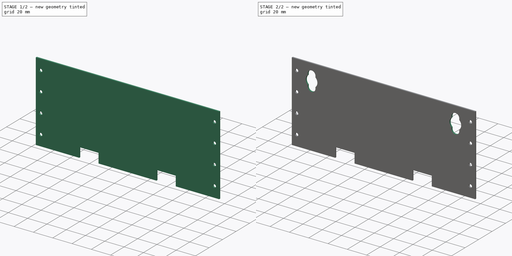
[diagram: build sequence overview — one tinted view per stage of 2, left to right]
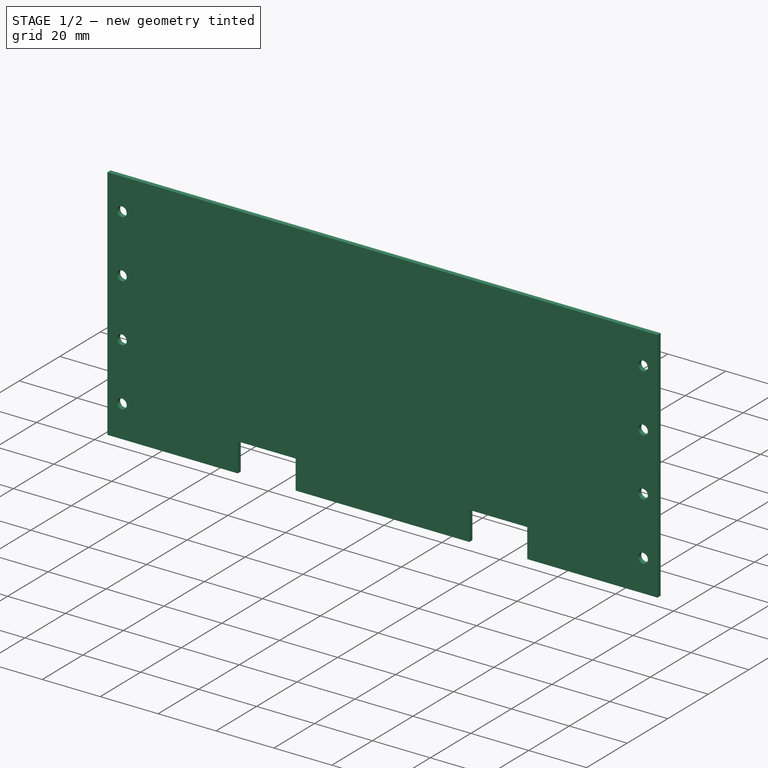
[diagram: stage 1 of 2 — iso view after this stage's code; geometry added in this stage tinted green]
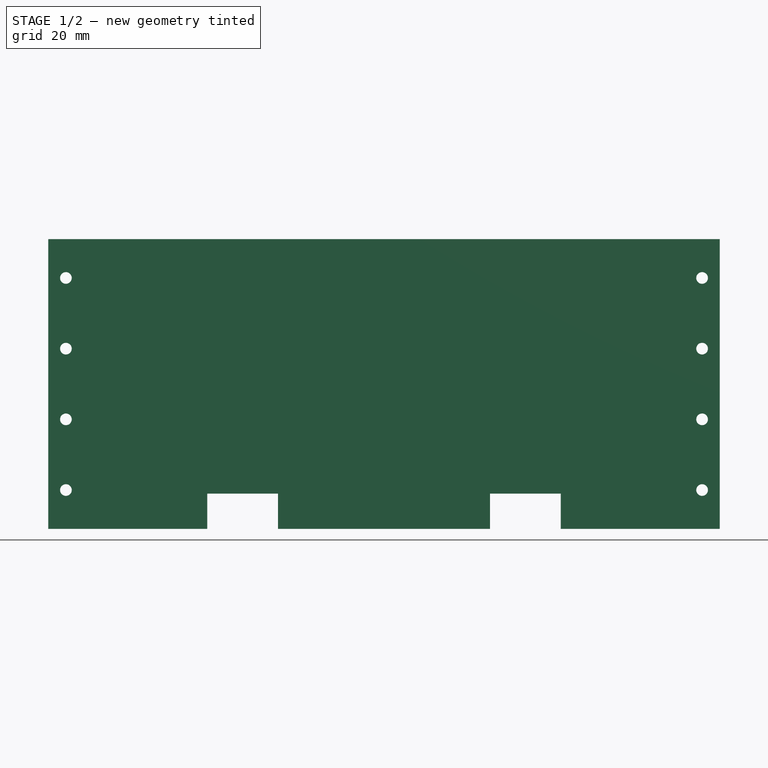
[diagram: stage 1 of 2 — front view after this stage's code; geometry added in this stage tinted green]
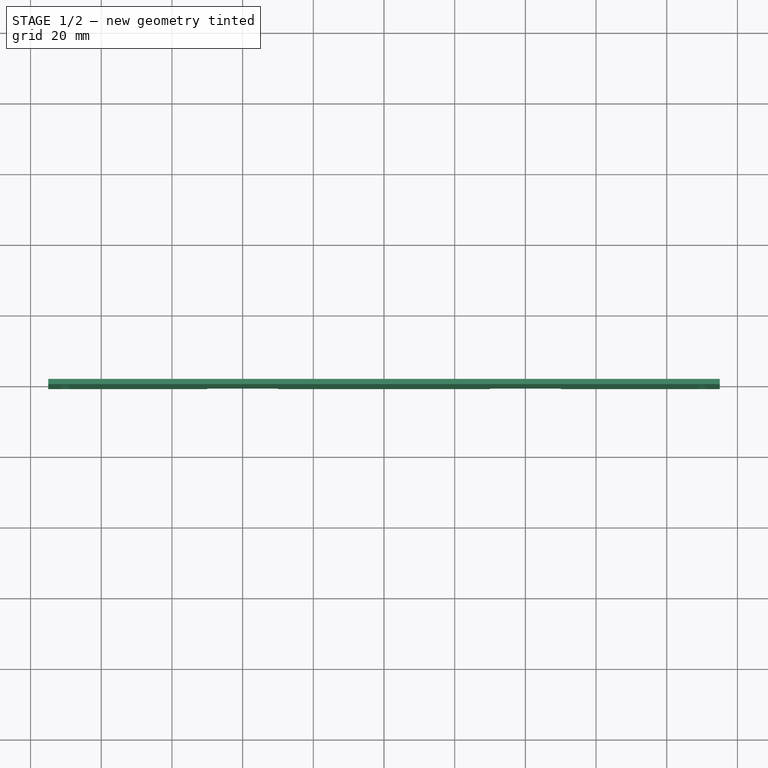
[diagram: stage 1 of 2 — top view after this stage's code; geometry added in this stage tinted green]
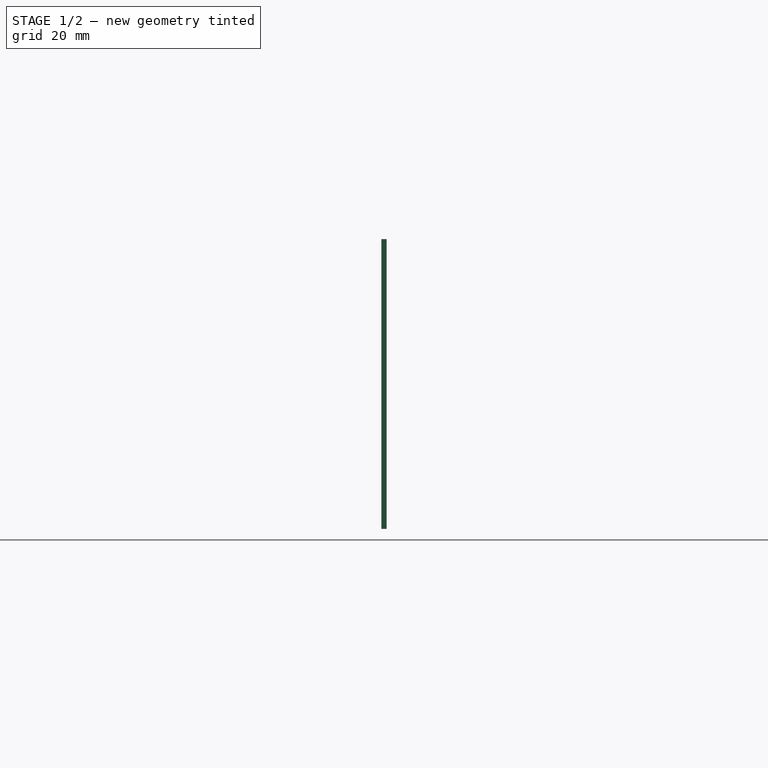
[diagram: stage 1 of 2 — right view after this stage's code; geometry added in this stage tinted green]
FCSTD DOCUMENT  (FreeCAD 1.0R39109 (Git))
Label: wall_batteries
License: All rights reserved
LicenseURL: https://en.wikipedia.org/wiki/All_rights_reserved
objects: Sketcher::SketchObject×4, PartDesign::Pocket×3, PartDesign::Pad×1, PartDesign::Body×1
note: 21 computed .brp shape members not serialized (recipe doc carries the construction recipe); baked Part::Feature solids carry a one-line shape summary decoded from their .brp

FEATURE [Sketcher::SketchObject] Sketch
  ArcFitTolerance = 1e-06
  AttachmentSupport = -> [XZ_Plane]
  FullyConstrained = true
  MakeInternals = false
  MapMode = 5
  Placement = pos=(0,0,0) rot=(1,0,0;1.5708rad)
  sketch-geometry (18):
    g0: LineSegment StartX=-95 StartY=41 StartZ=0 EndX=-95 EndY=-41 EndZ=0
    g1: LineSegment StartX=-95 StartY=-41 StartZ=0 EndX=95 EndY=-41 EndZ=0
    g2: LineSegment StartX=95 StartY=-41 StartZ=0 EndX=95 EndY=41 EndZ=0
    g3: LineSegment StartX=95 StartY=41 StartZ=0 EndX=-95 EndY=41 EndZ=0
    g4: GeomPoint [constr] X=0 Y=0 Z=0
    g5: LineSegment [constr] StartX=-95 StartY=40 StartZ=0 EndX=-95 EndY=-40 EndZ=0
    g6: LineSegment [constr] StartX=-95 StartY=-40 StartZ=0 EndX=95 EndY=-40 EndZ=0
    g7: LineSegment [constr] StartX=95 StartY=-40 StartZ=0 EndX=95 EndY=40 EndZ=0
    g8: LineSegment [constr] StartX=95 StartY=40 StartZ=0 EndX=-95 EndY=40 EndZ=0
    g9: GeomPoint [constr] X=0 Y=0 Z=0
    g10: Circle CenterX=90 CenterY=30 CenterZ=0 NormalX=0 NormalY=0 NormalZ=1 AngleXU=0 Radius=1.65
    g11: Circle CenterX=90 CenterY=10 CenterZ=0 NormalX=0 NormalY=0 NormalZ=1 AngleXU=0 Radius=1.65
    g12: Circle CenterX=90 CenterY=-30 CenterZ=0 NormalX=0 NormalY=0 NormalZ=1 AngleXU=0 Radius=1.65
    g13: Circle CenterX=90 CenterY=-10 CenterZ=0 NormalX=0 NormalY=0 NormalZ=1 AngleXU=0 Radius=1.65
    g14: Circle CenterX=-90 CenterY=30 CenterZ=0 NormalX=0 NormalY=0 NormalZ=1 AngleXU=0 Radius=1.65
    g15: Circle CenterX=-90 CenterY=10 CenterZ=0 NormalX=0 NormalY=0 NormalZ=1 AngleXU=0 Radius=1.65
    g16: Circle CenterX=-90 CenterY=-30 CenterZ=0 NormalX=0 NormalY=0 NormalZ=1 AngleXU=0 Radius=1.65
    g17: Circle CenterX=-90 CenterY=-10 CenterZ=0 NormalX=0 NormalY=0 NormalZ=1 AngleXU=0 Radius=1.65
  constraints (42):
    c: Coincident(g0,g1)
    c: Coincident(g1,g2)
    c: Coincident(g2,g3)
    c: Coincident(g3,g0)
    c: Vertical(g0)
    c: Vertical(g2)
    c: Horizontal(g1)
    c: Horizontal(g3)
    c: Symmetric(g2,g0,g4)
    c: Coincident(g4,g-1)
    c: Coincident(g5,g6)
    c: Coincident(g6,g7)
    c: Coincident(g7,g8)
    c: Coincident(g8,g5)
    c: Vertical(g5)
    c: Vertical(g7)
    c: Horizontal(g6)
    c: Horizontal(g8)
    c: Symmetric(g7,g5,g9)
    c: Coincident(g9,g4)
    c: PointOnObject(g6,g2)
    c: DistanceY(g6,g7) = 80
    c: DistanceY(g1,g6) = 1
    c: DistanceX(g1,g1) = 190
    c: Equal(g10,g11)
    c: Radius(g11) = 1.65
    c: DistanceY(g11,g10) = 20
    c: Vertical(g10,g11)
    c: DistanceX(g10,g7) = 5
    c: DistanceY(g10,g7) = 10
    c: Equal(g12,g13)
    c: Radius(g13) = 1.65
    c: Equal(g14,g15)
    c: Radius(g15) = 1.65
    c: Equal(g16,g17)
    c: Radius(g17) = 1.65
    c: Symmetric(g10,g12,g-1)
    c: Symmetric(g13,g11,g-1)
    c: Symmetric(g12,g16,g-2)
    c: Symmetric(g17,g13,g-2)
    c: Symmetric(g11,g15,g-2)
    c: Symmetric(g14,g10,g-2)
FEATURE [PartDesign::Pad] Pad  label="BasePad"
  Direction = (0,-1,2e-16)
  Length = 0.75
  Length2 = 0.75
  Placement = pos=(0,0,0) rot=(1,0,0;1.5708rad)
  Profile = -> Sketch
  ReferenceAxis = -> Sketch [N_Axis]
  Refine = true
  Suppressed = false
  Type = 4
FEATURE [Sketcher::SketchObject] Sketch001
  ArcFitTolerance = 1e-06
  AttachmentSupport = -> [Pad]
  ExternalGeometry = -> [Pad]
  FullyConstrained = true
  MakeInternals = false
  MapMode = 5
  Placement = pos=(0,-0.75,0) rot=(1,0,0;1.5708rad)
  sketch-geometry (15):
    g0: LineSegment [constr] StartX=-10 StartY=-31 StartZ=0 EndX=-10 EndY=-41 EndZ=0
    g1: LineSegment [constr] StartX=-10 StartY=-41 StartZ=0 EndX=10 EndY=-41 EndZ=0
    g2: LineSegment [constr] StartX=10 StartY=-41 StartZ=0 EndX=10 EndY=-31 EndZ=0
    g3: LineSegment [constr] StartX=10 StartY=-31 StartZ=0 EndX=-10 EndY=-31 EndZ=0
    g4: GeomPoint [constr] X=0 Y=-36 Z=0
    g5: LineSegment StartX=-50 StartY=-31 StartZ=0 EndX=-50 EndY=-41 EndZ=0
    g6: LineSegment StartX=-50 StartY=-41 StartZ=0 EndX=-30 EndY=-41 EndZ=0
    g7: LineSegment StartX=-30 StartY=-41 StartZ=0 EndX=-30 EndY=-31 EndZ=0
    g8: LineSegment StartX=-30 StartY=-31 StartZ=0 EndX=-50 EndY=-31 EndZ=0
    g9: GeomPoint [constr] X=-40 Y=-36 Z=0
    g10: LineSegment StartX=30 StartY=-31 StartZ=0 EndX=30 EndY=-41 EndZ=0
    g11: LineSegment StartX=30 StartY=-41 StartZ=0 EndX=50 EndY=-41 EndZ=0
    g12: LineSegment StartX=50 StartY=-41 StartZ=0 EndX=50 EndY=-31 EndZ=0
    g13: LineSegment StartX=50 StartY=-31 StartZ=0 EndX=30 EndY=-31 EndZ=0
    g14: GeomPoint [constr] X=40 Y=-36 Z=0
  constraints (37):
    c: Coincident(g0,g1)
    c: Coincident(g1,g2)
    c: Coincident(g2,g3)
    c: Coincident(g3,g0)
    c: Vertical(g0)
    c: Vertical(g2)
    c: Horizontal(g1)
    c: Horizontal(g3)
    c: Symmetric(g2,g0,g4)
    c: PointOnObject(g4,g-2)
    c: DistanceY(g2,g2) = 10
    c: DistanceX(g3,g3) = 20
    c: Coincident(g5,g6)
    c: Coincident(g6,g7)
    c: Coincident(g7,g8)
    c: Coincident(g8,g5)
    c: Vertical(g5)
    c: Vertical(g7)
    c: Horizontal(g6)
    c: Horizontal(g8)
    c: Symmetric(g7,g5,g9)
    c: Coincident(g10,g11)
    c: Coincident(g11,g12)
    c: Coincident(g12,g13)
    c: Coincident(g13,g10)
    c: Vertical(g10)
    c: Vertical(g12)
    c: Horizontal(g11)
    c: Horizontal(g13)
    c: Symmetric(g12,g10,g14)
    c: Symmetric(g14,g9,g4)
    c: Symmetric(g7,g10,g-2)
    c: DistanceX(g6,g0) = 20
    c: Equal(g13,g3)
    c: Horizontal(g11,g-3)
    c: Horizontal(g10,g6)
    c: Equal(g7,g2)
FEATURE [PartDesign::Pocket] Pocket  label="ChargerPocket"
  BaseFeature = -> Pad
  Direction = (0,1,-2e-16)
  Length = 5
  Length2 = 5
  Placement = pos=(0,0,0) rot=(1,0,0;1.5708rad)
  Profile = -> Sketch001
  ReferenceAxis = -> Sketch001 [N_Axis]
  Refine = true
  Suppressed = false
  Type = 1
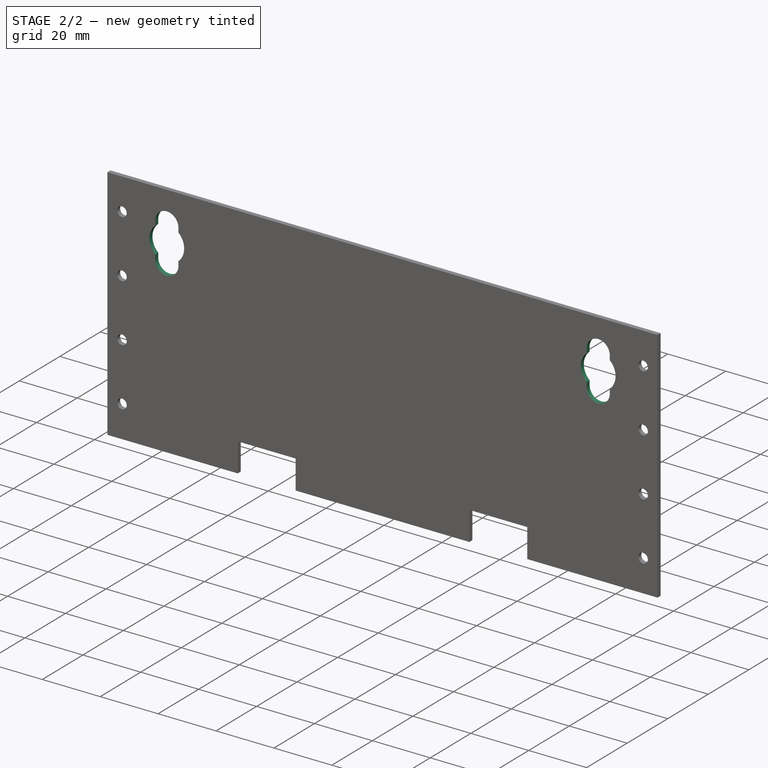
[diagram: stage 2 of 2 — iso view after this stage's code; geometry added in this stage tinted green]
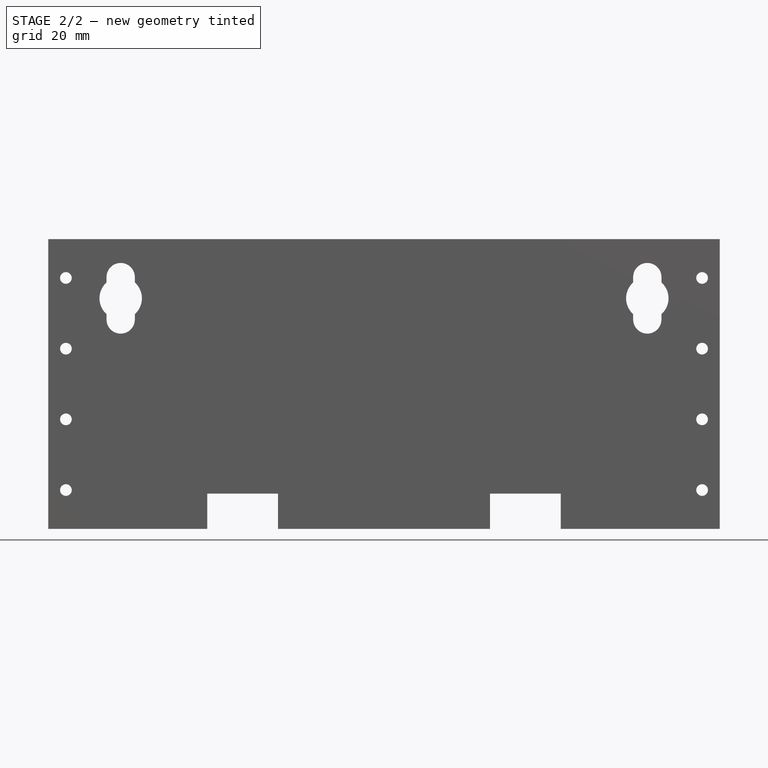
[diagram: stage 2 of 2 — front view after this stage's code; geometry added in this stage tinted green]
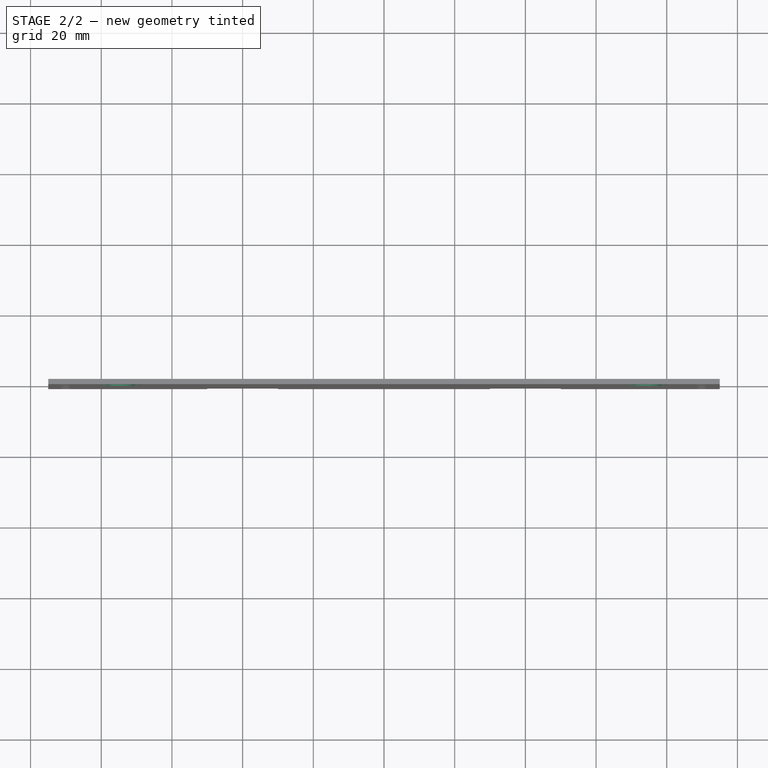
[diagram: stage 2 of 2 — top view after this stage's code; geometry added in this stage tinted green]
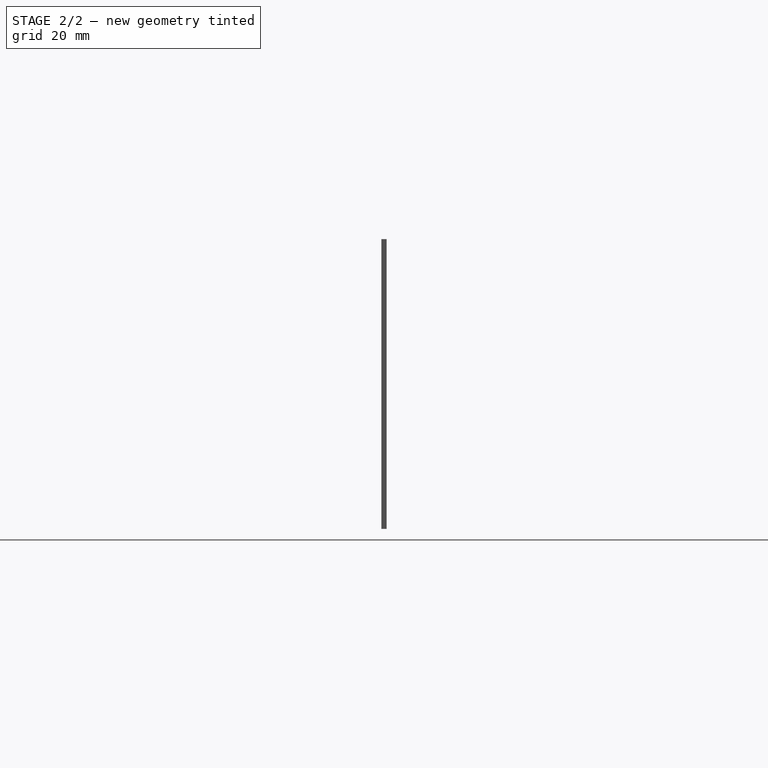
[diagram: stage 2 of 2 — right view after this stage's code; geometry added in this stage tinted green]
FEATURE [Sketcher::SketchObject] Sketch002
  ArcFitTolerance = 1e-06
  AttachmentSupport = -> [Pocket]
  ExternalGeometry = -> [Pocket]
  FullyConstrained = true
  MakeInternals = false
  MapMode = 5
  Placement = pos=(0,-0.75,0) rot=(1,0,0;1.5708rad)
  sketch-geometry (18):
    g0: LineSegment [constr] StartX=85.5 StartY=7.5 StartZ=0 EndX=85.5 EndY=41 EndZ=0
    g1: LineSegment [constr] StartX=85.5 StartY=41 StartZ=0 EndX=63.5 EndY=41 EndZ=0
    g2: LineSegment [constr] StartX=63.5 StartY=41 StartZ=0 EndX=63.5 EndY=7.5 EndZ=0
    g3: LineSegment [constr] StartX=63.5 StartY=7.5 StartZ=0 EndX=85.5 EndY=7.5 EndZ=0
    g4: GeomPoint [constr] X=74.5 Y=24.25 Z=0
    g5: ArcOfCircle CenterX=74.5 CenterY=30.25 CenterZ=0 NormalX=0 NormalY=0 NormalZ=1 AngleXU=0 Radius=4 StartAngle=0 EndAngle=3.14159
    g6: ArcOfCircle CenterX=74.5 CenterY=18.25 CenterZ=0 NormalX=0 NormalY=0 NormalZ=1 AngleXU=0 Radius=4 StartAngle=3.14159 EndAngle=6.28319
    g7: LineSegment StartX=78.5 StartY=30.25 StartZ=0 EndX=78.5 EndY=18.25 EndZ=0
    g8: LineSegment StartX=70.5 StartY=30.25 StartZ=0 EndX=70.5 EndY=18.25 EndZ=0
    g9: GeomPoint X=74.5 Y=34.25 Z=0
    g10: GeomPoint X=74.5 Y=14.25 Z=0
    g11: GeomPoint [constr] X=-74.5 Y=24.25 Z=0
    g12: ArcOfCircle CenterX=-74.5 CenterY=30.25 CenterZ=0 NormalX=0 NormalY=0 NormalZ=1 AngleXU=0 Radius=4 StartAngle=6e-16 EndAngle=3.14159
    g13: ArcOfCircle CenterX=-74.5 CenterY=18.25 CenterZ=0 NormalX=0 NormalY=0 NormalZ=1 AngleXU=0 Radius=4 StartAngle=3.14159 EndAngle=6.28319
    g14: LineSegment StartX=-78.5 StartY=30.25 StartZ=0 EndX=-78.5 EndY=18.25 EndZ=0
    g15: LineSegment StartX=-70.5 StartY=30.25 StartZ=0 EndX=-70.5 EndY=18.25 EndZ=0
    g16: GeomPoint X=-74.5 Y=34.25 Z=0
    g17: GeomPoint X=-74.5 Y=14.25 Z=0
  constraints (39):
    c: Coincident(g0,g1)
    c: Coincident(g1,g2)
    c: Coincident(g2,g3)
    c: Coincident(g3,g0)
    c: Vertical(g0)
    c: Vertical(g2)
    c: Horizontal(g1)
    c: Horizontal(g3)
    c: DistanceX(g3,g3) = 22
    c: DistanceY(g2,g2) = 33.5
    c: Symmetric(g0,g1,g4)
    c: Tangent(g5,g7) = 1.5708
    c: Tangent(g5,g8) = -1.5708
    c: Tangent(g6,g7) = 1.5708
    c: Tangent(g6,g8) = -1.5708
    c: Equal(g5,g6)
    c: Vertical(g8)
    c: Symmetric(g6,g5,g4)
    c: DistanceX(g5,g5) = 8
    c: PointOnObject(g9,g5)
    c: PointOnObject(g10,g6)
    c: Vertical(g10,g9)
    c: Vertical(g9,g5)
    c: DistanceY(g10,g9) = 20
    c: Tangent(g12,g14) = -1.5708
    c: Tangent(g12,g15) = 1.5708
    c: Tangent(g13,g14) = -1.5708
    c: Tangent(g13,g15) = 1.5708
    c: Equal(g12,g13)
    c: Symmetric(g13,g12,g11)
    c: PointOnObject(g16,g12)
    c: PointOnObject(g17,g13)
    c: Symmetric(g12,g5,g-2)
    c: Symmetric(g6,g13,g-2)
    c: Equal(g13,g6)
    c: Vertical(g17,g13)
    c: Vertical(g12,g16)
    c: Horizontal(g0,g-3)
    c: DistanceX(g0,g-3) = 9.5
FEATURE [PartDesign::Pocket] Pocket001  label="SwitchPocket"
  BaseFeature = -> Pocket
  Direction = (0,1,-2e-16)
  Length = 5
  Length2 = 5
  Placement = pos=(0,0,0) rot=(1,0,0;1.5708rad)
  Profile = -> Sketch002
  ReferenceAxis = -> Sketch002 [N_Axis]
  Refine = true
  Suppressed = false
  Type = 1
FEATURE [Sketcher::SketchObject] Sketch003
  ArcFitTolerance = 1e-06
  AttachmentSupport = -> [Pocket001]
  ExternalGeometry = -> [Pocket001]
  FullyConstrained = true
  MakeInternals = false
  MapMode = 5
  Placement = pos=(0,-0.75,0) rot=(1,0,0;1.5708rad)
  sketch-geometry (2):
    g0: Circle CenterX=-74.5 CenterY=24.25 CenterZ=0 NormalX=0 NormalY=0 NormalZ=1 AngleXU=0 Radius=6
    g1: Circle CenterX=74.5 CenterY=24.25 CenterZ=0 NormalX=0 NormalY=0 NormalZ=1 AngleXU=0 Radius=6
  constraints (4):
    c: Symmetric(g-4,g-3,g0)
    c: Radius(g0) = 6
    c: Radius(g1) = 6
    c: Symmetric(g1,g0,g-2)
FEATURE [PartDesign::Pocket] Pocket002  label="Switch2Pocket"
  BaseFeature = -> Pocket001
  Direction = (0,1,-2e-16)
  Length = 5
  Length2 = 5
  Placement = pos=(0,0,0) rot=(1,0,0;1.5708rad)
  Profile = -> Sketch003
  ReferenceAxis = -> Sketch003 [N_Axis]
  Refine = true
  Suppressed = false
  Type = 1
FEATURE [PartDesign::Body] Body  label="wall_batteries"
  AllowCompound = false
  Group = -> [Sketch,Pad,Sketch001,Pocket,Sketch002,Pocket001,Sketch003,Pocket002]
  Origin = -> Origin
  Tip = -> Pocket002
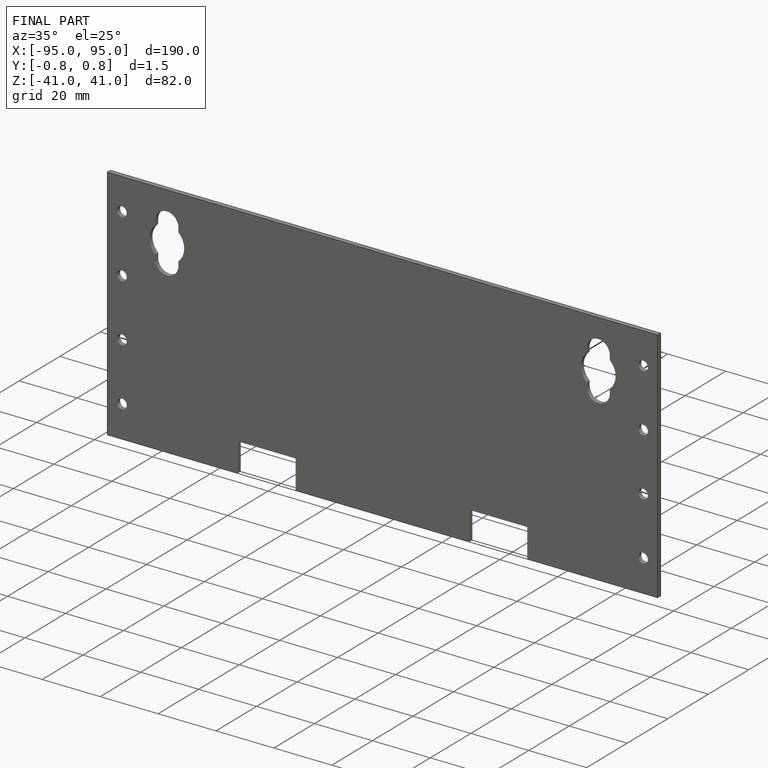
[diagram: finished part — iso view with bounding-box wireframe]
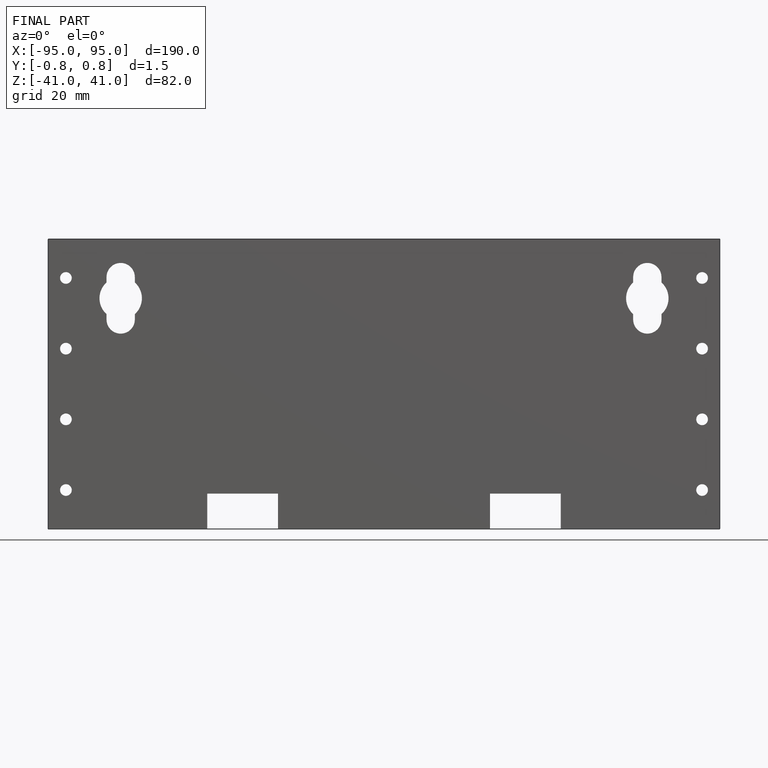
[diagram: finished part — front view with bounding-box wireframe]
